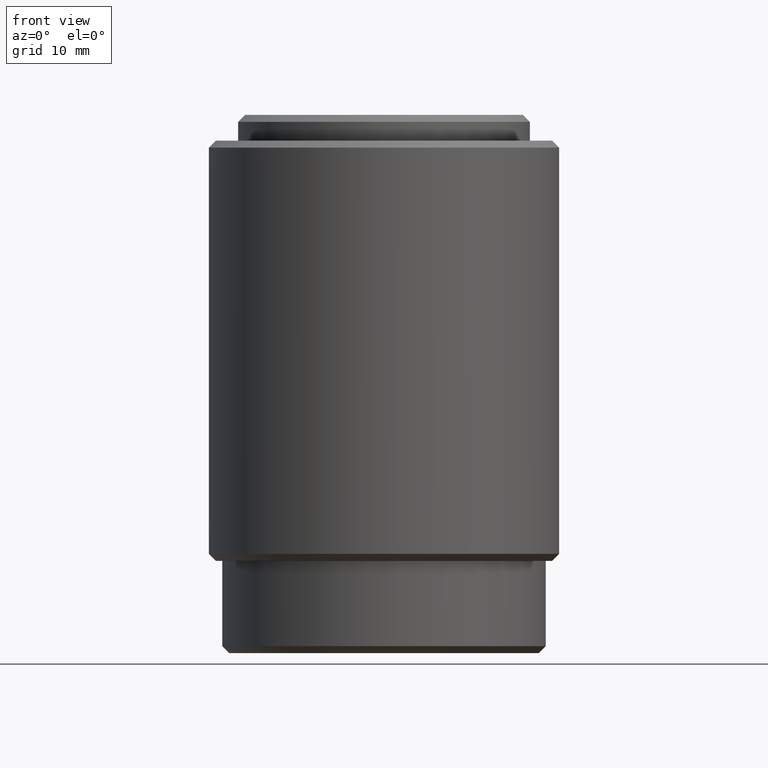
[diagram: clean part render]
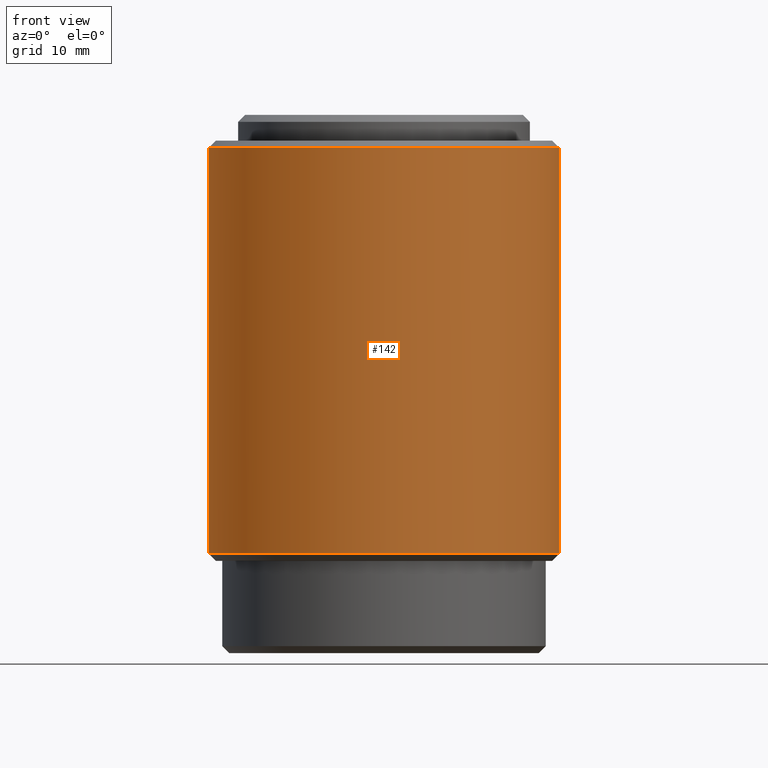
[diagram: same view with one face highlighted and labeled with its STEP entity id]
A machine part, front view. The second image highlights one B-rep face of the part: STEP entity #142.
In plain terms, the highlighted cylindrical surface (partial cylindrical patch) has radius 15 mm, axis along (-0, -0, -1).
Its self-contained STEP definition (entity closure, byte-faithful):
#9 = VECTOR ( 'NONE', #491, 1000.000000000000000 ) ;
#17 = EDGE_CURVE ( 'NONE', #391, #103, #339, .T. ) ;
#20 = LINE ( 'NONE', #118, #446 ) ;
#23 = ORIENTED_EDGE ( 'NONE', *, *, #88, .F. ) ;
#28 = CARTESIAN_POINT ( 'NONE',  ( -15.00000000000000000, 0.0000000000000000000, 43.89999999999999100 ) ) ;
#42 = ORIENTED_EDGE ( 'NONE', *, *, #144, .T. ) ;
#49 = CIRCLE ( 'NONE', #247, 15.00000000000000000 ) ;
#88 = EDGE_CURVE ( 'NONE', #168, #103, #20, .T. ) ;
#103 = VERTEX_POINT ( 'NONE', #401 ) ;
#111 = CYLINDRICAL_SURFACE ( 'NONE', #134, 15.00000000000000000 ) ;
#118 = CARTESIAN_POINT ( 'NONE',  ( 15.00000000000000000, 1.836970198721029600E-015, 43.89999999999999100 ) ) ;
#124 = FACE_OUTER_BOUND ( 'NONE', #311, .T. ) ;
#128 = AXIS2_PLACEMENT_3D ( 'NONE', #433, #149, #392 ) ;
#134 = AXIS2_PLACEMENT_3D ( 'NONE', #199, #363, #441 ) ;
#142 = ADVANCED_FACE ( 'NONE', ( #124 ), #111, .T. ) ;
#144 = EDGE_CURVE ( 'NONE', #335, #391, #219, .T. ) ;
#149 = DIRECTION ( 'NONE',  ( -0.0000000000000000000, -0.0000000000000000000, 1.000000000000000000 ) ) ;
#168 = VERTEX_POINT ( 'NONE', #286 ) ;
#199 = CARTESIAN_POINT ( 'NONE',  ( 0.0000000000000000000, 0.0000000000000000000, 43.89999999999999100 ) ) ;
#201 = CARTESIAN_POINT ( 'NONE',  ( -15.00000000000000000, 0.0000000000000000000, 43.29999999999999700 ) ) ;
#203 = DIRECTION ( 'NONE',  ( -0.0000000000000000000, -0.0000000000000000000, -1.000000000000000000 ) ) ;
#211 = DIRECTION ( 'NONE',  ( 0.0000000000000000000, 0.0000000000000000000, -1.000000000000000000 ) ) ;
#219 = LINE ( 'NONE', #28, #9 ) ;
#247 = AXIS2_PLACEMENT_3D ( 'NONE', #453, #211, #497 ) ;
#265 = ORIENTED_EDGE ( 'NONE', *, *, #470, .T. ) ;
#274 = CARTESIAN_POINT ( 'NONE',  ( -15.00000000000000000, 0.0000000000000000000, 8.500000000000007100 ) ) ;
#286 = CARTESIAN_POINT ( 'NONE',  ( 15.00000000000000000, 1.836970198721029600E-015, 43.29999999999999700 ) ) ;
#311 = EDGE_LOOP ( 'NONE', ( #23, #265, #42, #342 ) ) ;
#335 = VERTEX_POINT ( 'NONE', #201 ) ;
#339 = CIRCLE ( 'NONE', #128, 15.00000000000000000 ) ;
#342 = ORIENTED_EDGE ( 'NONE', *, *, #17, .T. ) ;
#363 = DIRECTION ( 'NONE',  ( -0.0000000000000000000, -0.0000000000000000000, -1.000000000000000000 ) ) ;
#391 = VERTEX_POINT ( 'NONE', #274 ) ;
#392 = DIRECTION ( 'NONE',  ( 1.000000000000000000, 0.0000000000000000000, 0.0000000000000000000 ) ) ;
#401 = CARTESIAN_POINT ( 'NONE',  ( 15.00000000000000000, 1.836970198721029600E-015, 8.500000000000007100 ) ) ;
#433 = CARTESIAN_POINT ( 'NONE',  ( 0.0000000000000000000, 0.0000000000000000000, 8.500000000000007100 ) ) ;
#441 = DIRECTION ( 'NONE',  ( -1.000000000000000000, 0.0000000000000000000, 0.0000000000000000000 ) ) ;
#446 = VECTOR ( 'NONE', #203, 1000.000000000000000 ) ;
#453 = CARTESIAN_POINT ( 'NONE',  ( 0.0000000000000000000, 0.0000000000000000000, 43.29999999999999700 ) ) ;
#470 = EDGE_CURVE ( 'NONE', #168, #335, #49, .T. ) ;
#491 = DIRECTION ( 'NONE',  ( -0.0000000000000000000, -0.0000000000000000000, -1.000000000000000000 ) ) ;
#497 = DIRECTION ( 'NONE',  ( 1.000000000000000000, 0.0000000000000000000, 0.0000000000000000000 ) ) ;